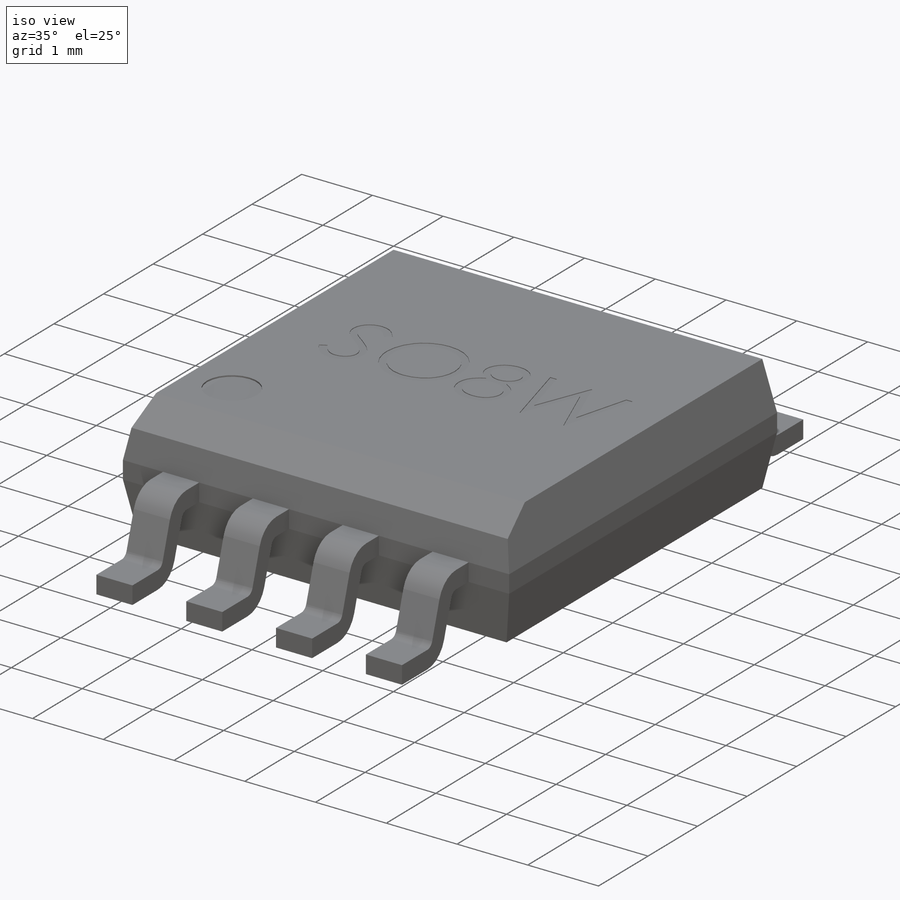
[diagram: iso view]
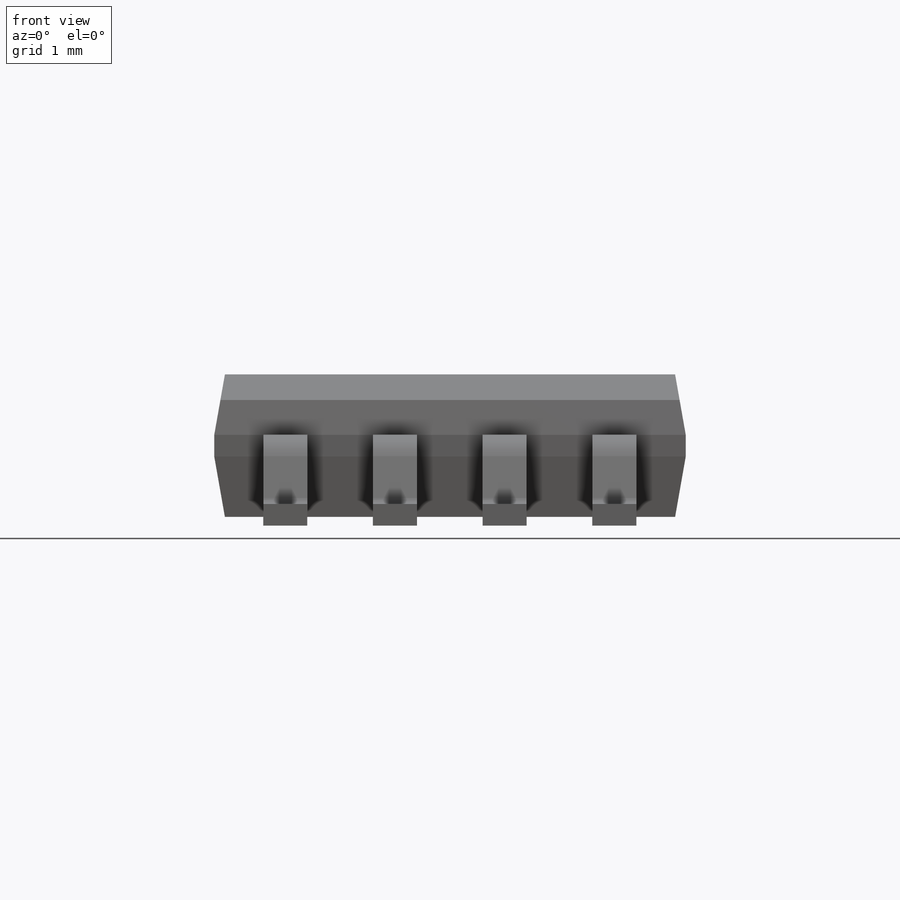
[diagram: front view]
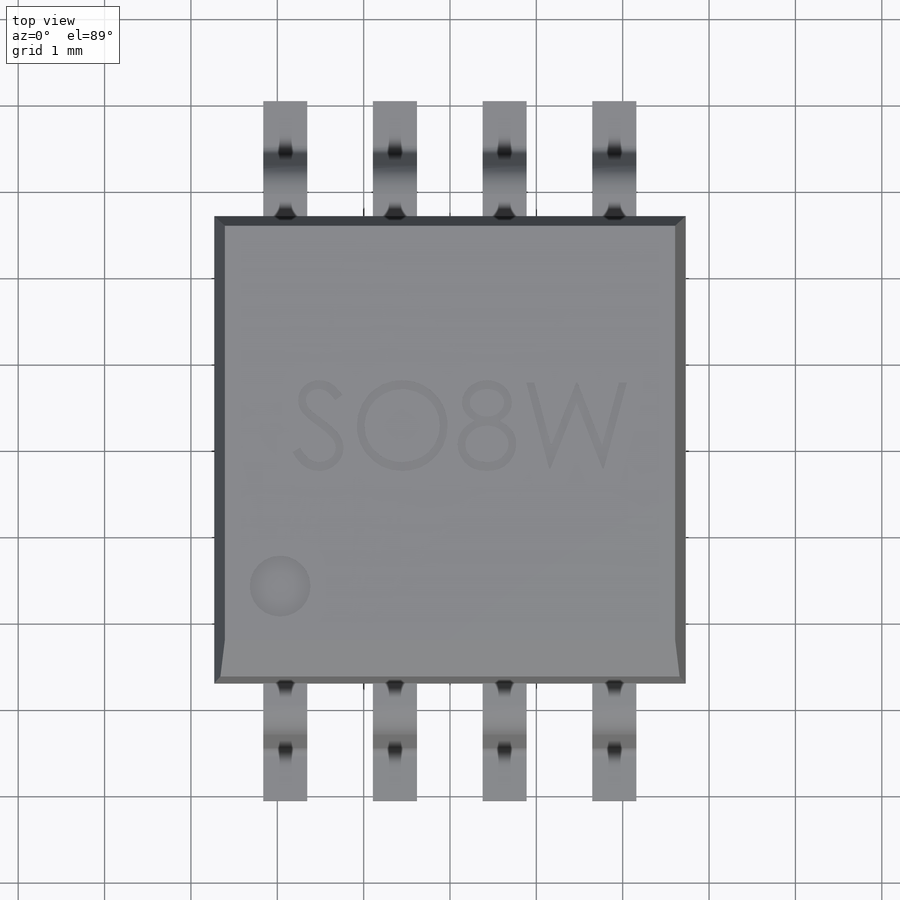
[diagram: top view]
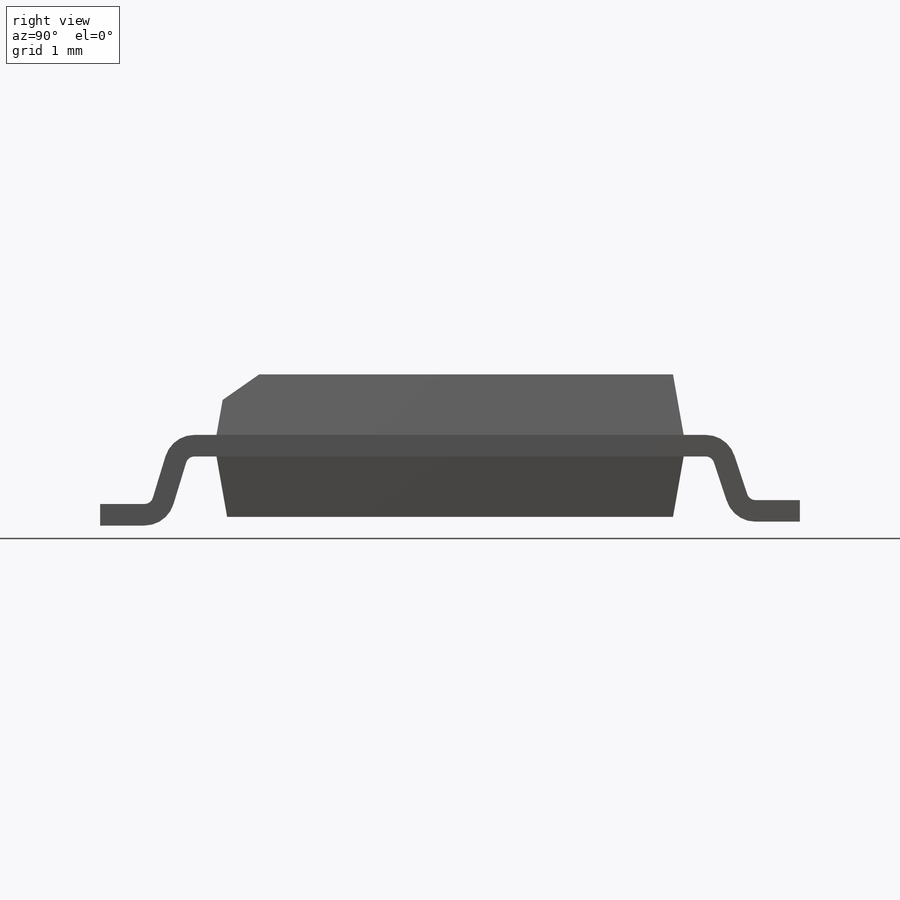
[diagram: right view]
SOLIDWORKS PART (.sldprt)
format: sldprt  version: not decoded by parser v0  size: 695,808 bytes
history: native  units: mm
features: sketch x6, extrude x4, cut_extrude x2, material x1, plane x1, chamfer x1, pattern_linear x1 (+12 scaffold rows collapsed)
feature tree (28):
  scaffold x12  (default folders/planes/origin — collapsed)
  material  "Material <not specified>"
  plane  "Plane1"  Offset=0.92mm
  sketch  "Sketch1"  dims[D1=2.73mm D2=2.705mm]
  extrude  "Boss-Extrude1"  Depth=0.125mm
  sketch  "Sketch2"  dims[D1=0.0mm]
  extrude  "Boss-Extrude2"  Depth=0.7mm
  sketch  "Sketch3"  dims[D1=0.0mm]
  extrude  "Boss-Extrude3"  Depth=0.7mm
  chamfer  "Chamfer1"  Distance=0.3mm Angle=45deg
  sketch  "Sketch5"  dims[c1.D4=0.1mm c1.D3=0.1mm c1.D5=0.1mm c1.D6=0.1mm c1.D9=0.1mm c2.D6=0.1mm c2.D7=0.1mm c2.D8=2.75mm c2.D2=0.055mm c2.D4=~0.647174mm c2.D1=5.315mm c3.D2=0.25mm c3.D3=1.27mm c4.D2=0.33mm c4.D4=0.33mm c4.D6=0.33mm c4.D8=4.05mm c4.D1=0.25mm c5.D2=0.125mm c5.D3=0.25mm c5.D4=0.125mm c5.D5=0.125mm c5.D10=0.25mm c6.D2=0.25mm c6.D1=1.75mm]
  extrude  "Boss-Extrude4"  Depth=0.51mm
  pattern_linear  "LPattern1"  Count1=2 Count2=3 Spacing1=1.27mm Spacing2=1.27mm
  sketch  "Sketch6"
  cut_extrude  "Cut-Extrude1"  Depth=0.02mm
  sketch  "Sketch7"
  cut_extrude  "Cut-Extrude2"  Depth=0.01mm
decode coverage: 12 of 14 modeling features carry decoded parameters
note: ~ marks probable driven/reference dimensions
note: suppression state not decoded; provenance and decode notes live in map.json
